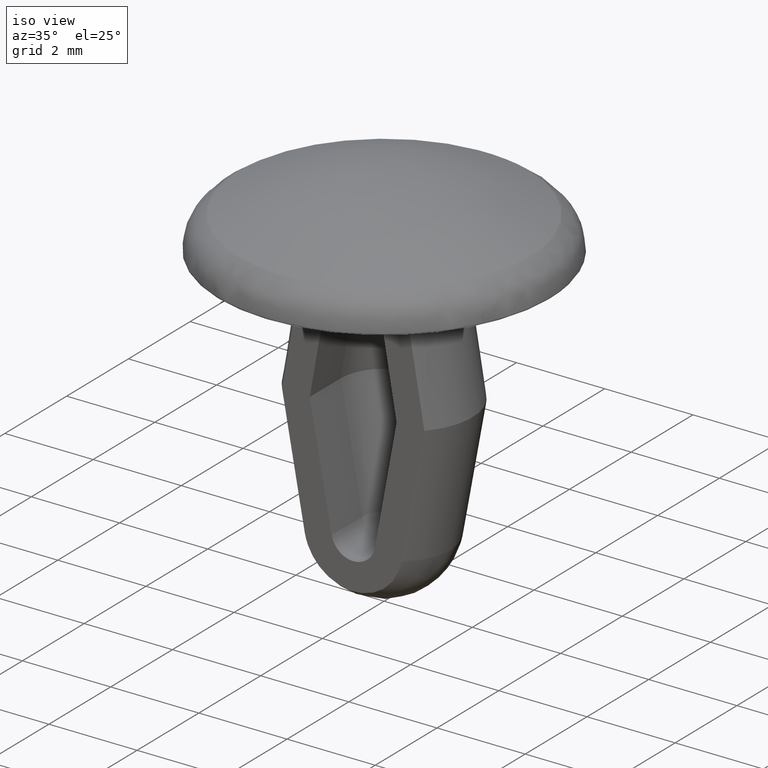
[diagram: clean part render]
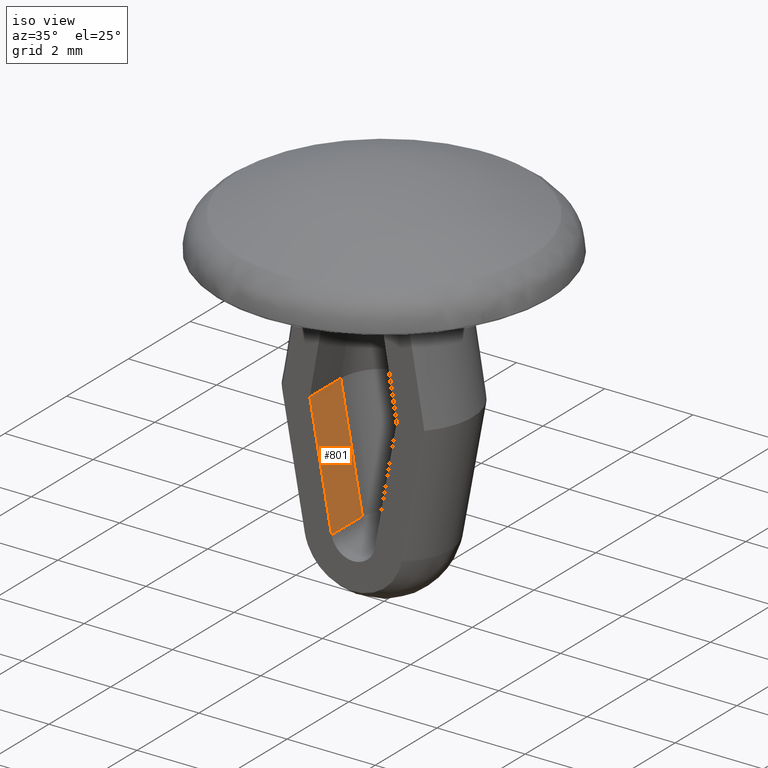
[diagram: same view with one face highlighted and labeled with its STEP entity id]
A machine part, iso view. The second image highlights one B-rep face of the part: STEP entity #801.
In plain terms, the highlighted face is a freeform B-spline surface patch.
Its self-contained STEP definition (entity closure, byte-faithful):
#455=CARTESIAN_POINT('',(-0.984370058216885,-2.168404E-016,-2.894893737698580));
#456=VERTEX_POINT('',#455);
#609=CARTESIAN_POINT('',(-0.491853382451721,-2.168404E-016,-5.589882435399630));
#610=VERTEX_POINT('',#609);
#631=CARTESIAN_POINT('',(-0.984370058216885,-2.168404E-016,-2.894893737698580));
#632=CARTESIAN_POINT('',(-0.491853382451721,-2.168404E-016,-5.589882435399630));
#633=QUASI_UNIFORM_CURVE('',1,(#631,#632),.UNSPECIFIED.,.F.,.U.);
#634=EDGE_CURVE('',#456,#610,#633,.T.);
#752=CARTESIAN_POINT('',(-0.491851000000000,-1.0,-5.589882000000000));
#753=VERTEX_POINT('',#752);
#772=CARTESIAN_POINT('',(-0.491853382451721,-2.168404E-016,-5.589882435399630));
#773=CARTESIAN_POINT('',(-0.491851000000000,-1.0,-5.589882000000000));
#774=QUASI_UNIFORM_CURVE('',1,(#772,#773),.UNSPECIFIED.,.F.,.U.);
#775=EDGE_CURVE('',#610,#753,#774,.T.);
#780=CARTESIAN_POINT('',(-0.467249854254128,-1.049949998061806,-5.724496639134854));
#781=CARTESIAN_POINT('',(-1.008967802338562,-1.049949998061806,-2.760278352410632));
#782=CARTESIAN_POINT('',(-0.467249854254128,0.049950024883896,-5.724496639134854));
#783=CARTESIAN_POINT('',(-1.008967802338562,0.049950024883896,-2.760278352410632));
#784=B_SPLINE_SURFACE_WITH_KNOTS('',1,1,((#780,#782),(#781,#783)),.UNSPECIFIED.,.F.,.F.,.U.,(2,2),(2,2),(0.0,3.013311863486269),(0.041708334948495,0.958291687403247),.UNSPECIFIED.);
#785=CARTESIAN_POINT('',(-0.984365058220935,-1.0,-2.894901737651875));
#786=VERTEX_POINT('',#785);
#787=CARTESIAN_POINT('',(-0.984370058216885,-2.168404E-016,-2.894893737698580));
#788=CARTESIAN_POINT('',(-0.984365058220935,-1.0,-2.894901737651875));
#789=QUASI_UNIFORM_CURVE('',1,(#787,#788),.UNSPECIFIED.,.F.,.U.);
#790=EDGE_CURVE('',#456,#786,#789,.T.);
#791=ORIENTED_EDGE('',*,*,#790,.T.);
#792=CARTESIAN_POINT('',(-0.984365058220935,-1.0,-2.894901737651875));
#793=CARTESIAN_POINT('',(-0.491851000000000,-1.0,-5.589882000000000));
#794=QUASI_UNIFORM_CURVE('',1,(#792,#793),.UNSPECIFIED.,.F.,.U.);
#795=EDGE_CURVE('',#786,#753,#794,.T.);
#796=ORIENTED_EDGE('',*,*,#795,.T.);
#797=ORIENTED_EDGE('',*,*,#775,.F.);
#798=ORIENTED_EDGE('',*,*,#634,.F.);
#799=EDGE_LOOP('',(#791,#796,#797,#798));
#800=FACE_OUTER_BOUND('',#799,.T.);
#801=ADVANCED_FACE('',(#800),#784,.F.);